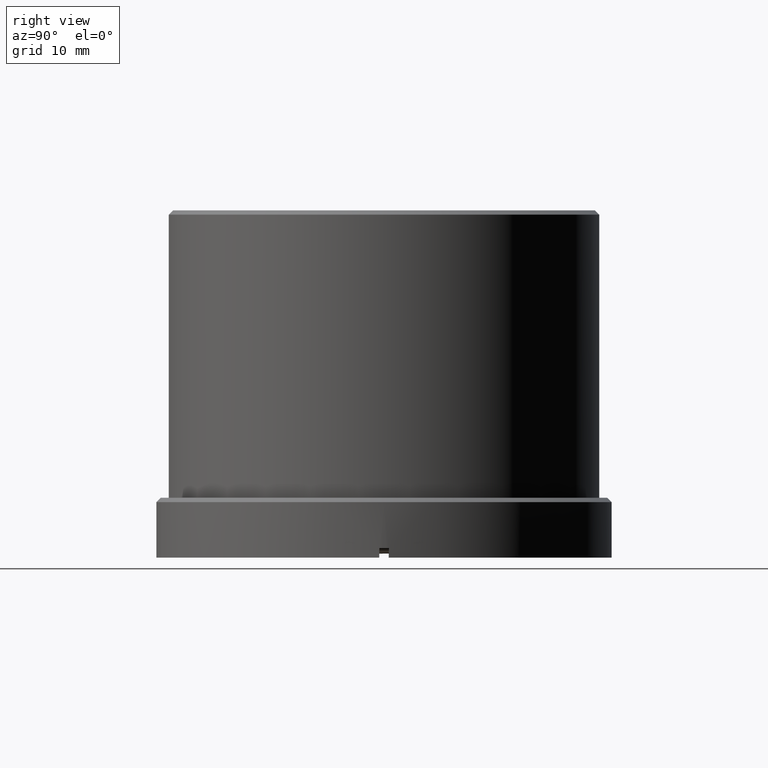
[diagram: clean part render]
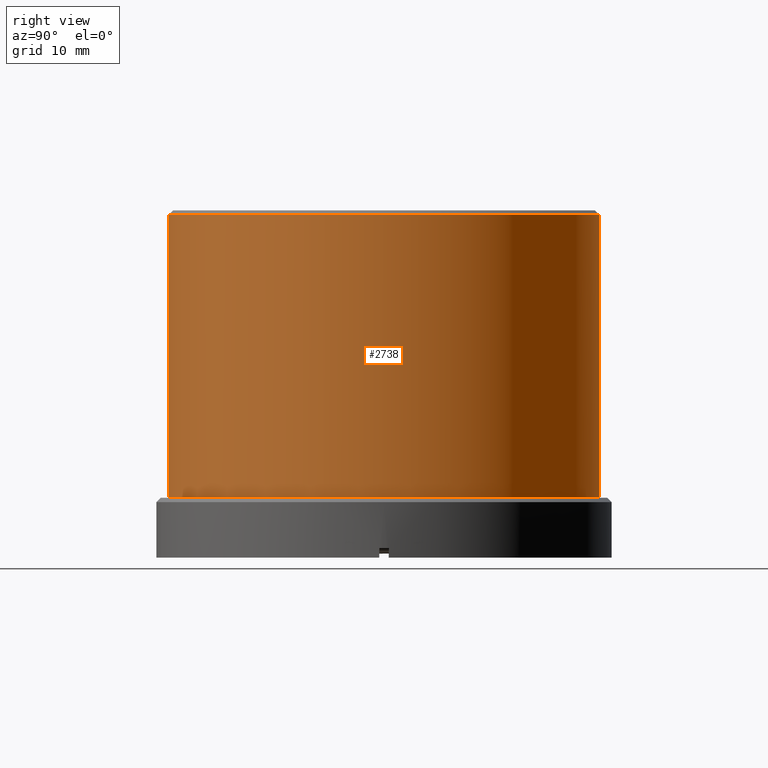
[diagram: same view with one face highlighted and labeled with its STEP entity id]
A machine part, right view. The second image highlights one B-rep face of the part: STEP entity #2738.
In plain terms, the highlighted cylindrical surface (bore or boss wall) has radius 18 mm, axis along (-0, -0, -1).
Its self-contained STEP definition (entity closure, byte-faithful):
#17 = CARTESIAN_POINT ( 'NONE',  ( 0.000000000000000000, 0.000000000000000000, 215.6772689990074241 ) ) ;
#40 = EDGE_CURVE ( 'NONE', #1272, #1272, #2689, .T. ) ;
#45 = DIRECTION ( 'NONE',  ( 0.000000000000000000, 0.000000000000000000, 1.000000000000000000 ) ) ;
#116 = ORIENTED_EDGE ( 'NONE', *, *, #886, .T. ) ;
#192 = FACE_OUTER_BOUND ( 'NONE', #1163, .T. ) ;
#206 = CARTESIAN_POINT ( 'NONE',  ( -17.99999999999998934, 0.000000000000000000, 239.3172689990073820 ) ) ;
#443 = EDGE_LOOP ( 'NONE', ( #116 ) ) ;
#735 = CARTESIAN_POINT ( 'NONE',  ( -17.99999999999998934, 0.000000000000000000, 215.6772689990074241 ) ) ;
#886 = EDGE_CURVE ( 'NONE', #1587, #1587, #2208, .T. ) ;
#947 = CARTESIAN_POINT ( 'NONE',  ( 0.000000000000000000, 0.000000000000000000, 239.3172689990073820 ) ) ;
#999 = AXIS2_PLACEMENT_3D ( 'NONE', #17, #45, #1708 ) ;
#1034 = DIRECTION ( 'NONE',  ( -1.000000000000000000, 0.000000000000000000, 0.000000000000000000 ) ) ;
#1163 = EDGE_LOOP ( 'NONE', ( #2500 ) ) ;
#1272 = VERTEX_POINT ( 'NONE', #206 ) ;
#1284 = CYLINDRICAL_SURFACE ( 'NONE', #2346, 17.99999999999998934 ) ;
#1587 = VERTEX_POINT ( 'NONE', #735 ) ;
#1708 = DIRECTION ( 'NONE',  ( -1.000000000000000000, 0.000000000000000000, 0.000000000000000000 ) ) ;
#1825 = DIRECTION ( 'NONE',  ( -0.000000000000000000, -0.000000000000000000, -1.000000000000000000 ) ) ;
#1924 = CARTESIAN_POINT ( 'NONE',  ( 0.000000000000000000, 0.000000000000000000, 171.6984302906483038 ) ) ;
#1928 = AXIS2_PLACEMENT_3D ( 'NONE', #947, #1825, #2248 ) ;
#2110 = FACE_OUTER_BOUND ( 'NONE', #443, .T. ) ;
#2208 = CIRCLE ( 'NONE', #999, 17.99999999999998934 ) ;
#2248 = DIRECTION ( 'NONE',  ( -1.000000000000000000, 0.000000000000000000, 0.000000000000000000 ) ) ;
#2326 = DIRECTION ( 'NONE',  ( -0.000000000000000000, -0.000000000000000000, -1.000000000000000000 ) ) ;
#2346 = AXIS2_PLACEMENT_3D ( 'NONE', #1924, #2326, #1034 ) ;
#2500 = ORIENTED_EDGE ( 'NONE', *, *, #40, .T. ) ;
#2689 = CIRCLE ( 'NONE', #1928, 17.99999999999998934 ) ;
#2738 = ADVANCED_FACE ( 'NONE', ( #2110, #192 ), #1284, .T. ) ;